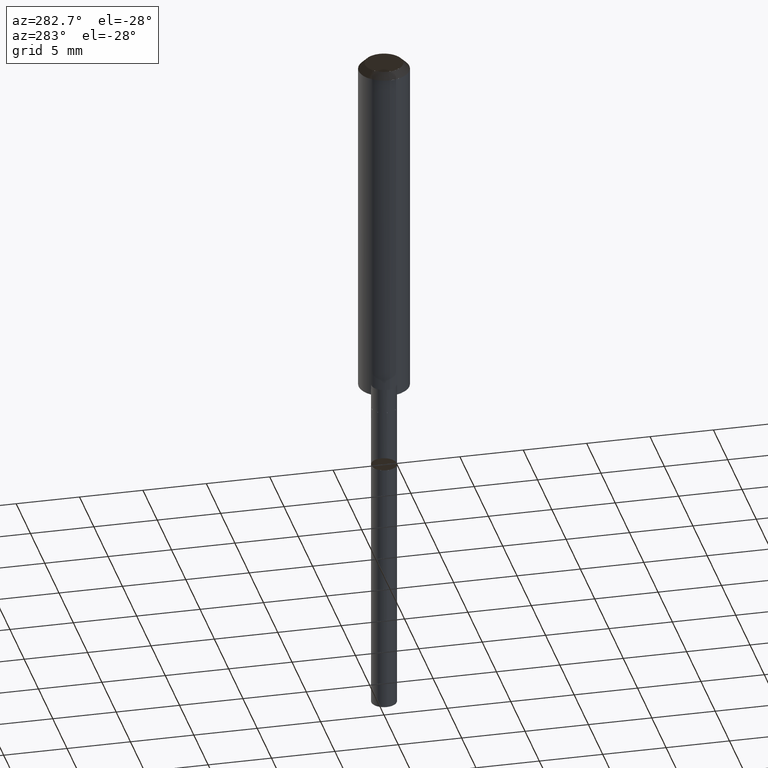
[diagram: clean part render]
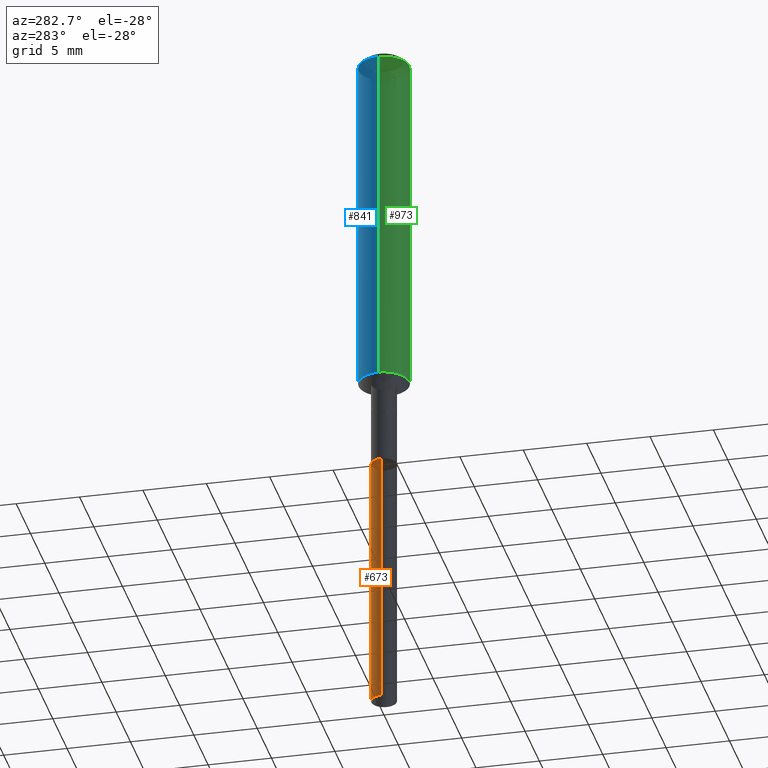
[diagram: same view with three faces highlighted in distinct colors, each labeled with its STEP entity id]
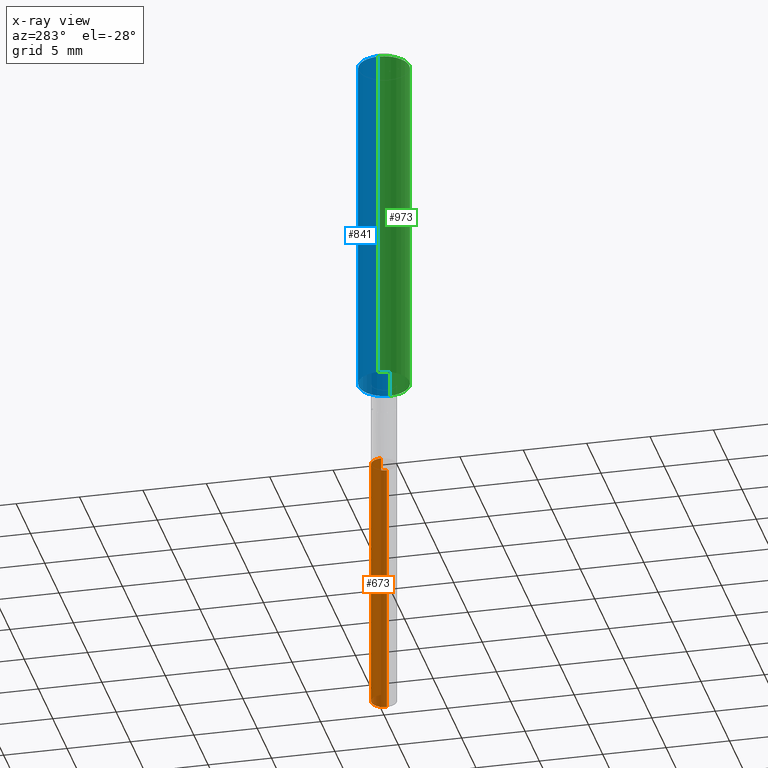
[diagram: x-ray of the same camera — body ghosted, the three highlighted faces saturated]
A machine part, auxiliary view with three faces highlighted in distinct colors.
The next image is the same camera in x-ray (body ghosted, the three faces saturated) — at least one of them is partly hidden behind the body in this view.
Their STEP definitions:

[orange] entity #673 — the highlighted face is a freeform B-spline surface patch.
#575=CARTESIAN_POINT('',(1.0,0.0,-27.636029765734));
#576=CARTESIAN_POINT('',(1.0,1.0,-27.636029765734));
#577=CARTESIAN_POINT('',(0.0,1.0,-27.636029765734));
#578=CARTESIAN_POINT('',(-1.0,1.0,-27.636029765734));
#579=CARTESIAN_POINT('',(-1.0,0.0,-27.636029765734));
#580=CARTESIAN_POINT('',(1.0,0.0,-7.0));
#581=CARTESIAN_POINT('',(1.0,1.0,-7.0));
#582=CARTESIAN_POINT('',(0.0,1.0,-7.0));
#583=CARTESIAN_POINT('',(-1.0,1.0,-7.0));
#584=CARTESIAN_POINT('',(-1.0,0.0,-7.0));
#654=(
BOUNDED_SURFACE()
B_SPLINE_SURFACE(1,2,(
(#575,#576,#577,#578,#579),
(#580,#581,#582,#583,#584)
), .UNSPECIFIED.,.F.,.F.,.F.)
B_SPLINE_SURFACE_WITH_KNOTS((2,2),(3,2,3),(
0.0,1.0),(
0.0,0.5,1.0), .UNSPECIFIED.)
GEOMETRIC_REPRESENTATION_ITEM()
RATIONAL_B_SPLINE_SURFACE(((1.0,0.707106781187,1.0,0.707106781187,1.0),
(1.0,0.707106781187,1.0,0.707106781187,1.0)
))
REPRESENTATION_ITEM('')
SURFACE()
);
#655=(
BOUNDED_CURVE()
B_SPLINE_CURVE(2,(#579,#578,#577,#576,#575),.UNSPECIFIED.,.F.,.F.)
B_SPLINE_CURVE_WITH_KNOTS((3,2,3),
(0.0,0.5,1.0),.UNSPECIFIED.)
CURVE()
GEOMETRIC_REPRESENTATION_ITEM()
RATIONAL_B_SPLINE_CURVE((1.0,0.707106781187,1.0,0.707106781187,1.0))
REPRESENTATION_ITEM('')
);
#656=(
BOUNDED_CURVE()
B_SPLINE_CURVE(1,(#575,#580),.UNSPECIFIED.,.F.,.F.)
B_SPLINE_CURVE_WITH_KNOTS((2,2),
(0.0,1.0),.UNSPECIFIED.)
CURVE()
GEOMETRIC_REPRESENTATION_ITEM()
RATIONAL_B_SPLINE_CURVE((1.0,1.0))
REPRESENTATION_ITEM('')
);
#657=(
BOUNDED_CURVE()
B_SPLINE_CURVE(2,(#580,#581,#582,#583,#584),.UNSPECIFIED.,.F.,.F.)
B_SPLINE_CURVE_WITH_KNOTS((3,2,3),
(0.0,0.5,1.0),.UNSPECIFIED.)
CURVE()
GEOMETRIC_REPRESENTATION_ITEM()
RATIONAL_B_SPLINE_CURVE((1.0,0.707106781187,1.0,0.707106781187,1.0))
REPRESENTATION_ITEM('')
);
#658=(
BOUNDED_CURVE()
B_SPLINE_CURVE(1,(#584,#579),.UNSPECIFIED.,.F.,.F.)
B_SPLINE_CURVE_WITH_KNOTS((2,2),
(0.0,1.0),.UNSPECIFIED.)
CURVE()
GEOMETRIC_REPRESENTATION_ITEM()
RATIONAL_B_SPLINE_CURVE((1.0,1.0))
REPRESENTATION_ITEM('')
);
#659=VERTEX_POINT('',#575);
#660=VERTEX_POINT('',#579);
#661=VERTEX_POINT('',#580);
#662=VERTEX_POINT('',#584);
#663=EDGE_CURVE('',#660,#659,#655,.T.);
#664=EDGE_CURVE('',#659,#661,#656,.T.);
#665=EDGE_CURVE('',#661,#662,#657,.T.);
#666=EDGE_CURVE('',#662,#660,#658,.T.);
#667=ORIENTED_EDGE('',*,*,#663,.T.);
#668=ORIENTED_EDGE('',*,*,#664,.T.);
#669=ORIENTED_EDGE('',*,*,#665,.T.);
#670=ORIENTED_EDGE('',*,*,#666,.T.);
#671=EDGE_LOOP('',(#667,#668,#669,#670));
#672=FACE_OUTER_BOUND('',#671,.T.);
#673=ADVANCED_FACE('',(#672),#654,.T.);

[blue] entity #841 — the highlighted face is a freeform B-spline surface patch.
#602=CARTESIAN_POINT('',(2.0,0.0,0.0));
#603=CARTESIAN_POINT('',(2.0,2.0,0.0));
#604=CARTESIAN_POINT('',(0.0,2.0,0.0));
#605=CARTESIAN_POINT('',(-2.0,2.0,0.0));
#606=CARTESIAN_POINT('',(-2.0,0.0,0.0));
#607=CARTESIAN_POINT('',(2.0,0.0,27.5));
#608=CARTESIAN_POINT('',(2.0,2.0,27.5));
#609=CARTESIAN_POINT('',(0.0,2.0,27.5));
#610=CARTESIAN_POINT('',(-2.0,2.0,27.5));
#611=CARTESIAN_POINT('',(-2.0,0.0,27.5));
#822=(
BOUNDED_SURFACE()
B_SPLINE_SURFACE(1,2,(
(#602,#603,#604,#605,#606),
(#607,#608,#609,#610,#611)
), .UNSPECIFIED.,.F.,.F.,.F.)
B_SPLINE_SURFACE_WITH_KNOTS((2,2),(3,2,3),(
0.0,1.0),(
0.0,0.5,1.0), .UNSPECIFIED.)
GEOMETRIC_REPRESENTATION_ITEM()
RATIONAL_B_SPLINE_SURFACE(((1.0,0.707106781187,1.0,0.707106781187,1.0),
(1.0,0.707106781187,1.0,0.707106781187,1.0)
))
REPRESENTATION_ITEM('')
SURFACE()
);
#823=(
BOUNDED_CURVE()
B_SPLINE_CURVE(2,(#606,#605,#604,#603,#602),.UNSPECIFIED.,.F.,.F.)
B_SPLINE_CURVE_WITH_KNOTS((3,2,3),
(0.0,0.5,1.0),.UNSPECIFIED.)
CURVE()
GEOMETRIC_REPRESENTATION_ITEM()
RATIONAL_B_SPLINE_CURVE((1.0,0.707106781187,1.0,0.707106781187,1.0))
REPRESENTATION_ITEM('')
);
#824=(
BOUNDED_CURVE()
B_SPLINE_CURVE(1,(#602,#607),.UNSPECIFIED.,.F.,.F.)
B_SPLINE_CURVE_WITH_KNOTS((2,2),
(0.0,1.0),.UNSPECIFIED.)
CURVE()
GEOMETRIC_REPRESENTATION_ITEM()
RATIONAL_B_SPLINE_CURVE((1.0,1.0))
REPRESENTATION_ITEM('')
);
#825=(
BOUNDED_CURVE()
B_SPLINE_CURVE(2,(#607,#608,#609,#610,#611),.UNSPECIFIED.,.F.,.F.)
B_SPLINE_CURVE_WITH_KNOTS((3,2,3),
(0.0,0.5,1.0),.UNSPECIFIED.)
CURVE()
GEOMETRIC_REPRESENTATION_ITEM()
RATIONAL_B_SPLINE_CURVE((1.0,0.707106781187,1.0,0.707106781187,1.0))
REPRESENTATION_ITEM('')
);
#826=(
BOUNDED_CURVE()
B_SPLINE_CURVE(1,(#611,#606),.UNSPECIFIED.,.F.,.F.)
B_SPLINE_CURVE_WITH_KNOTS((2,2),
(0.0,1.0),.UNSPECIFIED.)
CURVE()
GEOMETRIC_REPRESENTATION_ITEM()
RATIONAL_B_SPLINE_CURVE((1.0,1.0))
REPRESENTATION_ITEM('')
);
#827=VERTEX_POINT('',#602);
#828=VERTEX_POINT('',#606);
#829=VERTEX_POINT('',#607);
#830=VERTEX_POINT('',#611);
#831=EDGE_CURVE('',#828,#827,#823,.T.);
#832=EDGE_CURVE('',#827,#829,#824,.T.);
#833=EDGE_CURVE('',#829,#830,#825,.T.);
#834=EDGE_CURVE('',#830,#828,#826,.T.);
#835=ORIENTED_EDGE('',*,*,#831,.T.);
#836=ORIENTED_EDGE('',*,*,#832,.T.);
#837=ORIENTED_EDGE('',*,*,#833,.T.);
#838=ORIENTED_EDGE('',*,*,#834,.T.);
#839=EDGE_LOOP('',(#835,#836,#837,#838));
#840=FACE_OUTER_BOUND('',#839,.T.);
#841=ADVANCED_FACE('',(#840),#822,.T.);

[green] entity #973 — the highlighted face is a freeform B-spline surface patch.
#602=CARTESIAN_POINT('',(2.0,0.0,0.0));
#606=CARTESIAN_POINT('',(-2.0,0.0,0.0));
#607=CARTESIAN_POINT('',(2.0,0.0,27.5));
#611=CARTESIAN_POINT('',(-2.0,0.0,27.5));
#624=CARTESIAN_POINT('',(-2.0,-2.0,0.0));
#625=CARTESIAN_POINT('',(0.0,-2.0,0.0));
#626=CARTESIAN_POINT('',(2.0,-2.0,0.0));
#627=CARTESIAN_POINT('',(-2.0,-2.0,27.5));
#628=CARTESIAN_POINT('',(0.0,-2.0,27.5));
#629=CARTESIAN_POINT('',(2.0,-2.0,27.5));
#954=(
BOUNDED_SURFACE()
B_SPLINE_SURFACE(1,2,(
(#606,#624,#625,#626,#602),
(#611,#627,#628,#629,#607)
), .UNSPECIFIED.,.F.,.F.,.F.)
B_SPLINE_SURFACE_WITH_KNOTS((2,2),(3,2,3),(
0.0,1.0),(
0.0,0.5,1.0), .UNSPECIFIED.)
GEOMETRIC_REPRESENTATION_ITEM()
RATIONAL_B_SPLINE_SURFACE(((1.0,0.707106781187,1.0,0.707106781187,1.0),
(1.0,0.707106781187,1.0,0.707106781187,1.0)
))
REPRESENTATION_ITEM('')
SURFACE()
);
#955=(
BOUNDED_CURVE()
B_SPLINE_CURVE(2,(#602,#626,#625,#624,#606),.UNSPECIFIED.,.F.,.F.)
B_SPLINE_CURVE_WITH_KNOTS((3,2,3),
(0.0,0.5,1.0),.UNSPECIFIED.)
CURVE()
GEOMETRIC_REPRESENTATION_ITEM()
RATIONAL_B_SPLINE_CURVE((1.0,0.707106781187,1.0,0.707106781187,1.0))
REPRESENTATION_ITEM('')
);
#956=(
BOUNDED_CURVE()
B_SPLINE_CURVE(1,(#606,#611),.UNSPECIFIED.,.F.,.F.)
B_SPLINE_CURVE_WITH_KNOTS((2,2),
(0.0,1.0),.UNSPECIFIED.)
CURVE()
GEOMETRIC_REPRESENTATION_ITEM()
RATIONAL_B_SPLINE_CURVE((1.0,1.0))
REPRESENTATION_ITEM('')
);
#957=(
BOUNDED_CURVE()
B_SPLINE_CURVE(2,(#611,#627,#628,#629,#607),.UNSPECIFIED.,.F.,.F.)
B_SPLINE_CURVE_WITH_KNOTS((3,2,3),
(0.0,0.5,1.0),.UNSPECIFIED.)
CURVE()
GEOMETRIC_REPRESENTATION_ITEM()
RATIONAL_B_SPLINE_CURVE((1.0,0.707106781187,1.0,0.707106781187,1.0))
REPRESENTATION_ITEM('')
);
#958=(
BOUNDED_CURVE()
B_SPLINE_CURVE(1,(#607,#602),.UNSPECIFIED.,.F.,.F.)
B_SPLINE_CURVE_WITH_KNOTS((2,2),
(0.0,1.0),.UNSPECIFIED.)
CURVE()
GEOMETRIC_REPRESENTATION_ITEM()
RATIONAL_B_SPLINE_CURVE((1.0,1.0))
REPRESENTATION_ITEM('')
);
#959=VERTEX_POINT('',#602);
#960=VERTEX_POINT('',#606);
#961=VERTEX_POINT('',#607);
#962=VERTEX_POINT('',#611);
#963=EDGE_CURVE('',#959,#960,#955,.T.);
#964=EDGE_CURVE('',#960,#962,#956,.T.);
#965=EDGE_CURVE('',#962,#961,#957,.T.);
#966=EDGE_CURVE('',#961,#959,#958,.T.);
#967=ORIENTED_EDGE('',*,*,#963,.T.);
#968=ORIENTED_EDGE('',*,*,#964,.T.);
#969=ORIENTED_EDGE('',*,*,#965,.T.);
#970=ORIENTED_EDGE('',*,*,#966,.T.);
#971=EDGE_LOOP('',(#967,#968,#969,#970));
#972=FACE_OUTER_BOUND('',#971,.T.);
#973=ADVANCED_FACE('',(#972),#954,.T.);